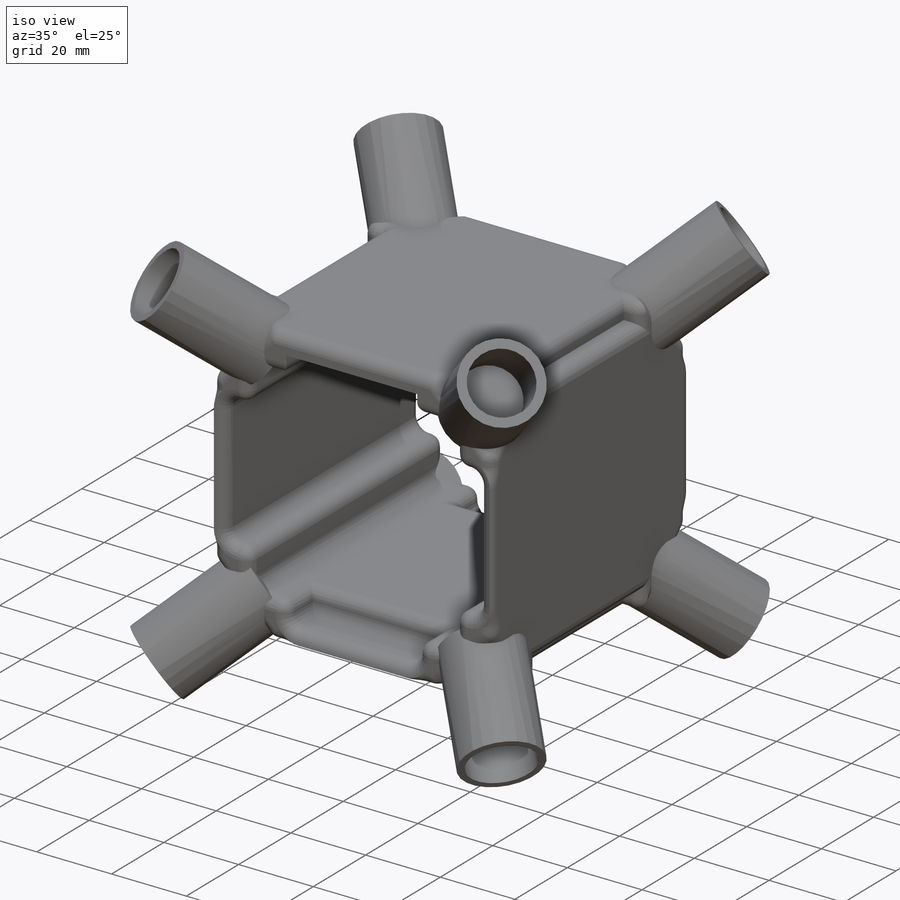
[diagram: iso view]
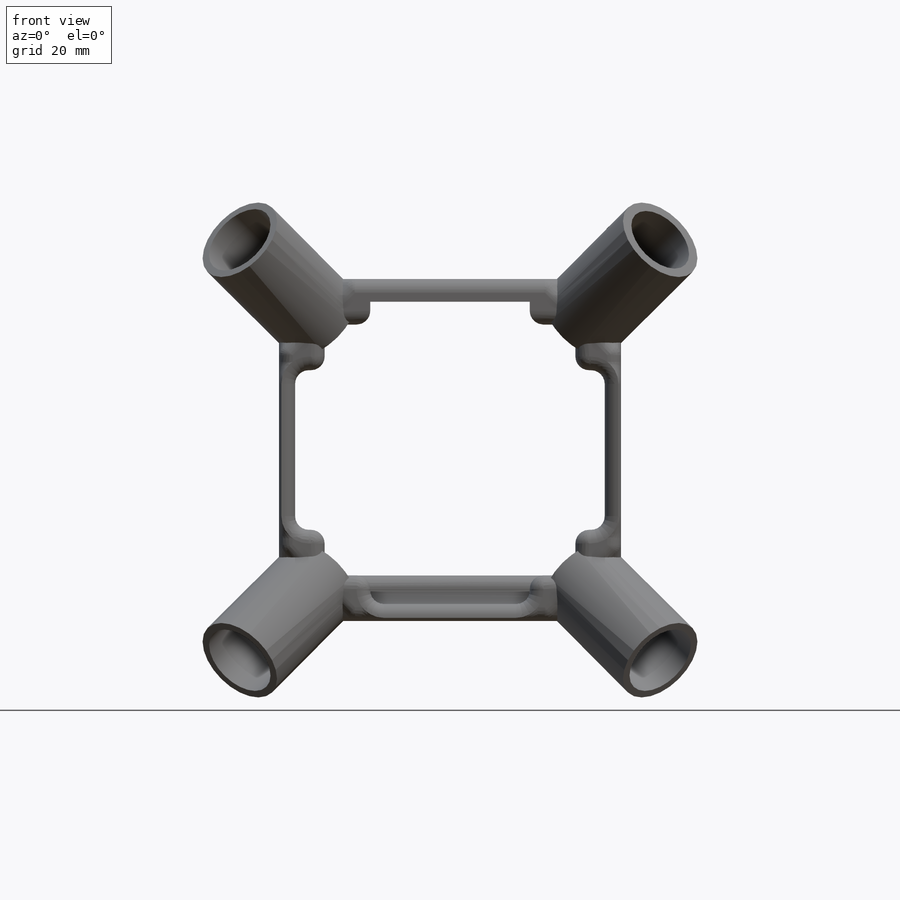
[diagram: front view]
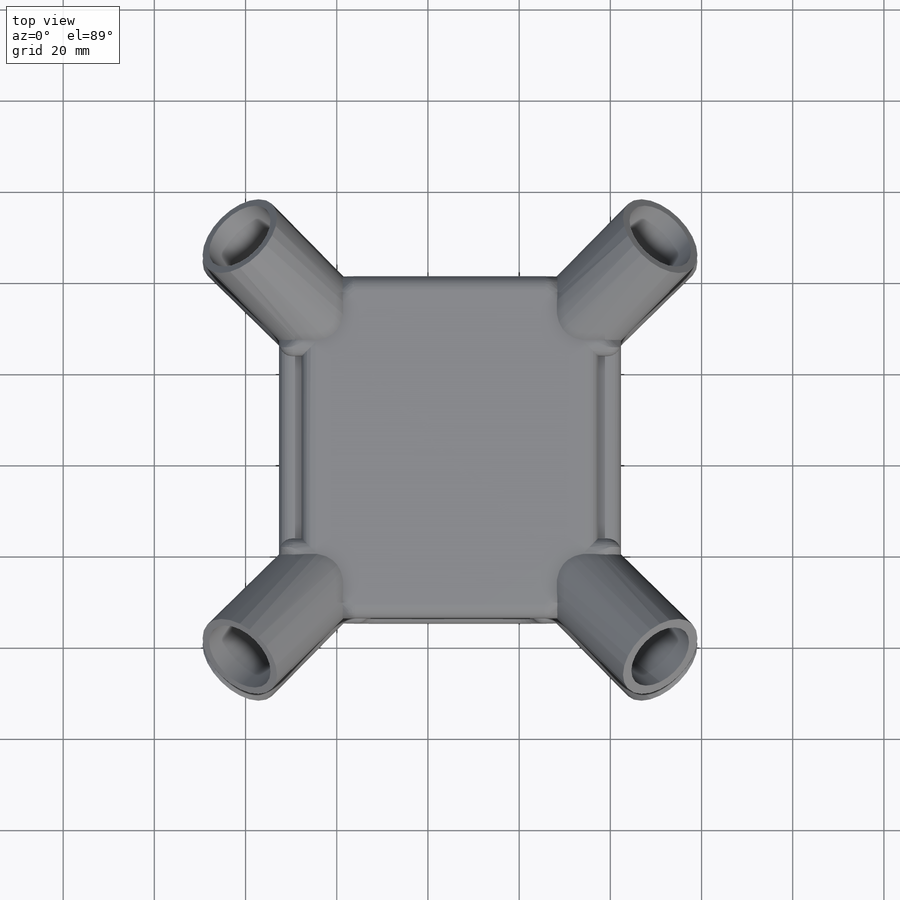
[diagram: top view]
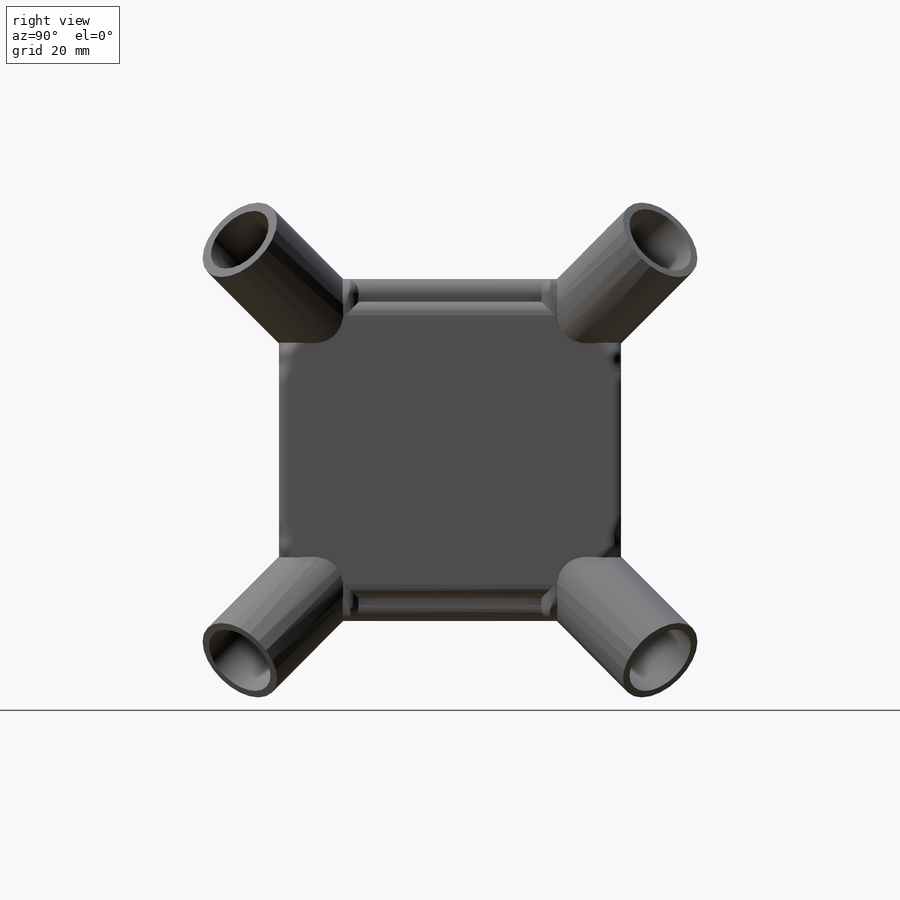
[diagram: right view]
SOLIDWORKS PART (.sldprt)
format: sldprt  version: not decoded by parser v0  size: 1,434,624 bytes
history: native  units: mm
features: sketch x35, cut_extrude x19, plane x11, extrude x10, fillet x8, material x1 (+9 scaffold rows collapsed)
feature tree (93):
  scaffold x9  (default folders/planes/origin — collapsed)
  material  "材質 <未指定>"
  plane  "前基準面"
  plane  "上基準面"
  plane  "右基準面"
  sketch  "草圖1"  dims[D1=75.0mm D2=75.0mm]
  extrude  "填料-伸長1"  Depth=75mm
  sketch  "草圖2"  dims[D1=17.5mm D2=17.5mm D3=17.5mm D4=17.5mm D5=17.5mm D6=17.5mm D7=17.5mm D8=17.5mm]
  sketch  "草圖3"  dims[D1=17.5mm D2=17.5mm D3=17.5mm D4=17.5mm D5=17.5mm D6=17.5mm D7=17.5mm D8=17.5mm]
  sketch  "草圖4"  dims[D1=17.5mm D2=17.5mm D3=17.5mm D4=17.5mm D5=17.5mm D6=17.5mm D7=17.5mm D8=17.5mm]
  sketch  "草圖5"  dims[D1=17.5mm D2=17.5mm D3=17.5mm D4=17.5mm D5=17.5mm D6=17.5mm D7=17.5mm D8=17.5mm]
  sketch  "草圖6"  dims[D1=17.5mm D2=17.5mm D3=17.5mm D4=17.5mm D5=17.5mm D6=17.5mm D7=17.5mm D8=17.5mm]
  sketch  "草圖7"  dims[D1=17.5mm D2=17.5mm D3=17.5mm D4=17.5mm D5=17.5mm D6=17.5mm D7=17.5mm D8=17.5mm]
  plane  "平面1"
  plane  "平面2"
  plane  "平面3"
  plane  "平面4"
  plane  "平面5"
  plane  "平面6"
  plane  "平面7"
  plane  "平面8"
  sketch  "草圖8"
  cut_extrude  "除料-伸長1"  Depth=75mm
  sketch  "草圖9"
  cut_extrude  "除料-伸長2"  Depth=75mm
  sketch  "草圖10"
  cut_extrude  "除料-伸長3"  Depth=75mm
  sketch  "草圖11"
  cut_extrude  "除料-伸長4"  Depth=75mm
  sketch  "草圖12"
  cut_extrude  "除料-伸長5"  Depth=75mm
  sketch  "草圖13"
  cut_extrude  "除料-伸長7"  Depth=75mm
  sketch  "草圖14"
  cut_extrude  "除料-伸長8"  Depth=75mm
  sketch  "草圖15"
  cut_extrude  "除料-伸長9"  Depth=75mm
  sketch  "草圖16"  dims[c1.D1=55.0mm c1.D2=55.0mm c1.D3=10.0mm c1.D4=5.0mm c2.D1=5.0mm c2.D2=5.0mm c2.D3=5.0mm c2.D4=5.0mm c2.D5=36.0mm c2.D6=36.0mm c3.D1=55.0mm c3.D2=55.0mm c3.D3=10.0mm c3.D4=10.0mm c3.D5=5.0mm c3.D6=35.0mm c3.D7=10.0mm c3.D8=35.0mm c3.D9=10.0mm c3.D10=35.0mm c3.D11=35.0mm c3.D12=10.0mm c3.D13=10.0mm]
  cut_extrude  "除料-伸長13"  Depth=75mm
  sketch  "草圖19"  dims[D1=10.0mm D2=10.0mm]
  extrude  "填料-伸長5"  Depth=6.3mm
  fillet  "圓角21"  Radius=3mm
  fillet  "圓角22"  Radius=3mm
  fillet  "圓角23"  Radius=3mm
  sketch  "草圖20"  dims[D1=40.0mm D2=5.0mm D3=5.0mm D4=40.0mm]
  cut_extrude  "除料-伸長14"  Depth=5mm
  sketch  "草圖21"  dims[D1=40.0mm D2=5.0mm D3=40.0mm D4=5.0mm]
  cut_extrude  "除料-伸長15"  Depth=5mm
  fillet  "圓角30"  Radius=3mm
  fillet  "圓角31"  Radius=3mm
  fillet  "圓角32"  Radius=3mm
  fillet  "圓角33"  Radius=3mm
  fillet  "圓角34"  Radius=3mm
  sketch  "草圖22"  dims[D1=20.0mm]
  sketch  "草圖23"  dims[D1=20.0mm]
  sketch  "草圖24"  dims[D1=20.0mm]
  sketch  "草圖25"  dims[c1.D1=20.0mm c1.D2=~24.748737mm c2.D1=~24.748737mm]
  sketch  "草圖26"  dims[D1=20.0mm]
  sketch  "草圖27"  dims[D1=20.0mm]
  sketch  "草圖28"  dims[D1=20.0mm]
  sketch  "草圖29"  dims[D1=20.0mm]
  extrude  "填料-伸長10"  Depth=25mm
  extrude  "填料-伸長11"  Depth=25mm
  extrude  "填料-伸長12"  Depth=25mm
  extrude  "填料-伸長13"  Depth=25mm
  extrude  "填料-伸長14"  Depth=25mm
  extrude  "填料-伸長15"  Depth=25mm
  extrude  "填料-伸長16"  Depth=25mm
  extrude  "填料-伸長17"  Depth=25mm
  sketch  "草圖30"  dims[D1=15.5mm D2=20.0mm]
  sketch  "草圖31"  dims[D1=16.5mm]
  sketch  "草圖32"  dims[D1=16.5mm]
  sketch  "草圖33"  dims[D1=16.5mm]
  sketch  "草圖34"  dims[D1=16.5mm D2=20.0mm]
  sketch  "草圖36"  dims[D1=16.5mm]
  sketch  "草圖38"  dims[D1=16.5mm]
  sketch  "草圖39"  dims[D1=16.5mm]
  cut_extrude  "除料-伸長16"  Depth=20mm
  cut_extrude  "除料-伸長17"  Depth=20mm
  cut_extrude  "除料-伸長18"  Depth=20mm
  cut_extrude  "除料-伸長19"  Depth=20mm
  cut_extrude  "除料-伸長20"  Depth=20mm
  cut_extrude  "除料-伸長21"  Depth=20mm
  cut_extrude  "除料-伸長22"  Depth=20mm
  cut_extrude  "除料-伸長23"  Depth=20mm
decode coverage: 64 of 72 modeling features carry decoded parameters
note: ~ marks probable driven/reference dimensions
note: suppression state not decoded; provenance and decode notes live in map.json
